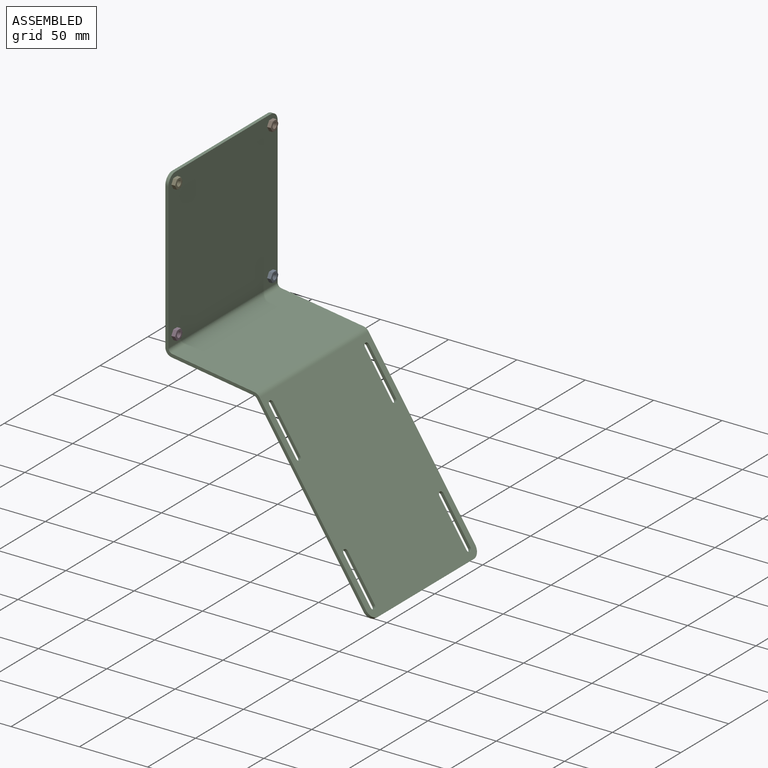
[diagram: assembled view]
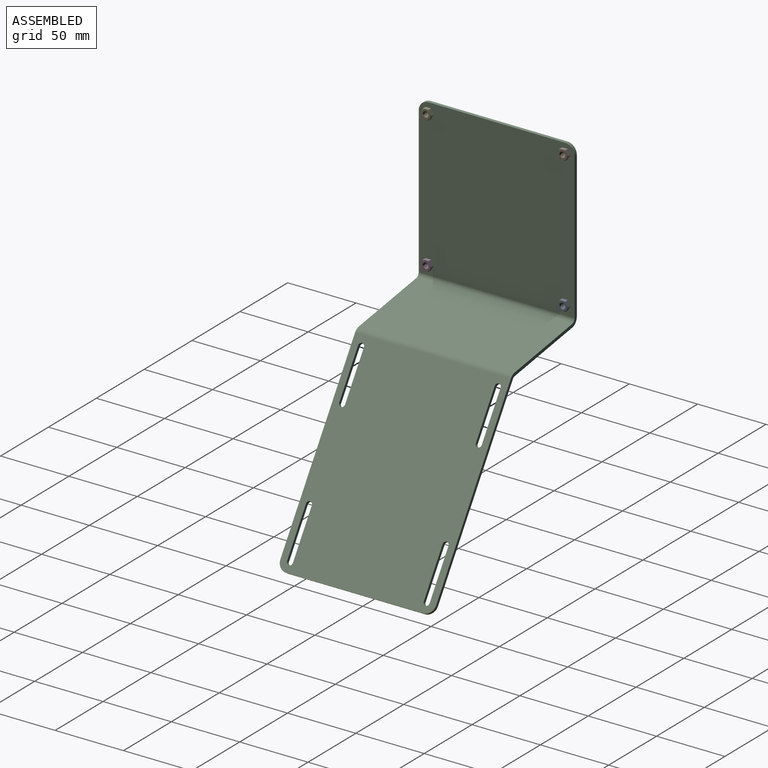
[diagram: assembled view, second angle]
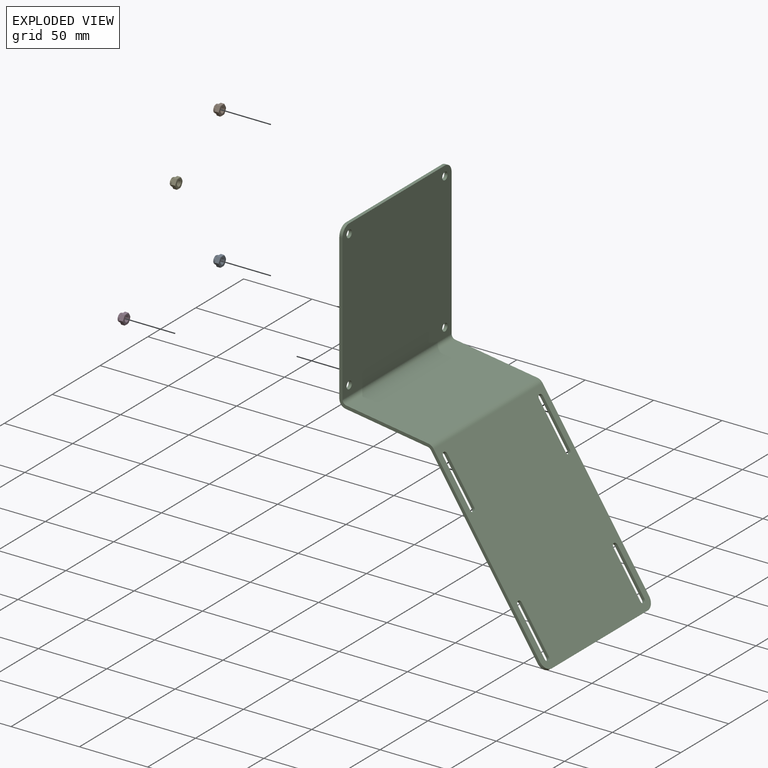
[diagram: exploded view]
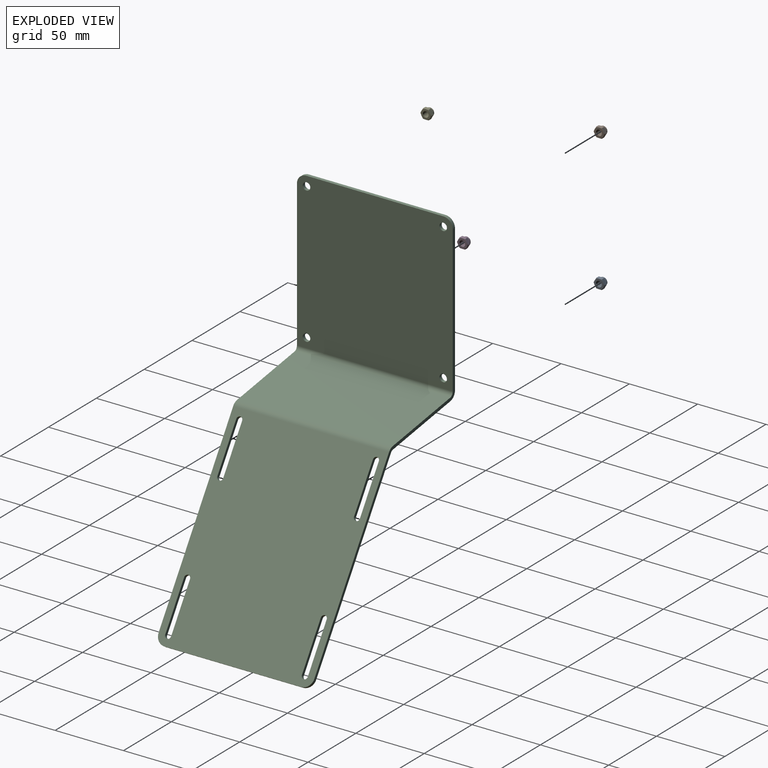
[diagram: exploded view, second angle]
ASSEMBLY  parts=5 mates=4
PART A: 276 faces, bbox 8.4x8.4x5.5 mm
  f0: plane 3.81x3.01mm, normal (0.5,0.87,0), area 10.6mm2, adj f1,f5,f155,f274,f275
  f1: plane 4.35x3.01mm, normal (1,0,0), area 10.6mm2, adj f0,f2,f155,f270,f275
  f2: plane 3.81x3.01mm, normal (0.5,-0.87,0), area 10.6mm2, adj f1,f3,f155,f270,f271
  f3: plane 3.81x3.01mm, normal (-0.5,-0.87,0), area 10.6mm2, adj f2,f4,f155,f271,f272
  f4: plane 4.35x3.01mm, normal (-1,0,0), area 10.6mm2, adj f3,f5,f155,f272,f273
  f5: plane 3.81x3.01mm, normal (-0.5,0.87,0), area 10.6mm2, adj f0,f4,f155,f273,f274
  f6: plane 7x7mm, normal (0,0,1), area 24.6mm2, adj f267,f270,f271,f272,f273,f274,f275
  f7: bspline ~4.93x4.63mm, area 34mm2, adj f8,f10,f267,f268
  f8: cylinder r=1.55mm len=3.59mm, axis (0,0,1), area 4.3mm2, adj f7,f9,f267,f268,f269
  f9: bspline ~4.81x4.62mm, area 34.1mm2, adj f8,f10,f267,f268,f269
  f10: cylinder r=2mm len=4.5mm, axis (0,0,1), area 2.2mm2, adj f7,f9,f267,f268
  f11: cylinder r=2.99mm len=1.5mm, axis (0,0,1), area 0.6mm2, adj f149,f153,f155,f157
  f12: cylinder r=2.99mm len=1.5mm, axis (0,0,1), area 0.6mm2, adj f146,f150,f155,f157
  f13: cylinder r=2.99mm len=1.5mm, axis (0,0,1), area 0.6mm2, adj f143,f147,f155,f157
  f14: cylinder r=2.99mm len=1.5mm, axis (0,0,1), area 0.6mm2, adj f140,f144,f155,f157
  f15: cylinder r=2.99mm len=1.5mm, axis (0,0,1), area 0.6mm2, adj f137,f141,f155,f157
  f16: cylinder r=2.99mm len=1.5mm, axis (0,0,1), area 0.6mm2, adj f134,f138,f155,f157
  f17: cylinder r=2.99mm len=1.5mm, axis (0,0,1), area 0.6mm2, adj f131,f135,f155,f157
  f18: cylinder r=2.99mm len=1.5mm, axis (0,0,1), area 0.6mm2, adj f128,f132,f155,f157
  f19: cylinder r=2.99mm len=1.5mm, axis (0,0,1), area 0.6mm2, adj f125,f129,f155,f157
  f20: cylinder r=2.99mm len=1.5mm, axis (0,0,1), area 0.6mm2, adj f122,f126,f155,f157
  f21: cylinder r=2.99mm len=1.5mm, axis (0,0,1), area 0.6mm2, adj f119,f123,f155,f157
  f22: cylinder r=2.99mm len=1.5mm, axis (0,0,1), area 0.6mm2, adj f116,f120,f155,f157
  f23: cylinder r=2.99mm len=1.5mm, axis (0,0,1), area 0.6mm2, adj f113,f117,f155,f157
  f24: cylinder r=2.99mm len=1.5mm, axis (0,0,1), area 0.6mm2, adj f110,f114,f155,f157
  f25: cylinder r=2.99mm len=1.5mm, axis (0,0,1), area 0.6mm2, adj f107,f111,f155,f157
  f26: cylinder r=2.99mm len=1.5mm, axis (0,0,1), area 0.6mm2, adj f104,f108,f155,f157
  f27: cylinder r=2.99mm len=1.5mm, axis (0,0,1), area 0.6mm2, adj f101,f105,f155,f157
  f28: cylinder r=2.99mm len=1.5mm, axis (0,0,1), area 0.6mm2, adj f98,f102,f155,f157
  f29: cylinder r=2.99mm len=1.5mm, axis (0,0,1), area 0.6mm2, adj f95,f99,f155,f157
  f30: cylinder r=2.99mm len=1.5mm, axis (0,0,1), area 0.6mm2, adj f92,f96,f155,f157
  f31: cylinder r=2.99mm len=1.5mm, axis (0,0,1), area 0.6mm2, adj f89,f93,f155,f157
  f32: cylinder r=2.99mm len=1.5mm, axis (0,0,1), area 0.6mm2, adj f86,f90,f155,f157
  f33: cylinder r=2.99mm len=1.5mm, axis (0,0,1), area 0.6mm2, adj f83,f87,f155,f157
  f34: cylinder r=2.99mm len=1.5mm, axis (0,0,1), area 0.6mm2, adj f80,f84,f155,f157
  f35: cylinder r=2.99mm len=1.5mm, axis (0,0,1), area 0.6mm2, adj f77,f81,f155,f157
  f36: cylinder r=2.99mm len=1.5mm, axis (0,0,1), area 0.6mm2, adj f74,f78,f155,f157
  f37: cylinder r=2.99mm len=1.5mm, axis (0,0,1), area 0.6mm2, adj f71,f75,f155,f157
  f38: cylinder r=2.99mm len=1.5mm, axis (0,0,1), area 0.6mm2, adj f68,f72,f155,f157
  f39: cylinder r=2.99mm len=1.5mm, axis (0,0,1), area 0.6mm2, adj f65,f69,f155,f157
  f40: cylinder r=2.99mm len=1.5mm, axis (0,0,1), area 0.6mm2, adj f62,f66,f155,f157
  f41: cylinder r=2.99mm len=1.5mm, axis (0,0,1), area 0.6mm2, adj f59,f63,f155,f157
  f42: cylinder r=2.99mm len=1.5mm, axis (0,0,1), area 0.6mm2, adj f56,f60,f155,f157
  f43: cylinder r=2.99mm len=1.5mm, axis (0,0,1), area 0.6mm2, adj f53,f57,f155,f157
  f44: cylinder r=2.99mm len=1.5mm, axis (0,0,1), area 0.6mm2, adj f50,f54,f155,f157
  f45: cylinder r=2.99mm len=1.5mm, axis (0,0,1), area 0.6mm2, adj f47,f51,f155,f157
  f46: cylinder r=2.99mm len=1.5mm, axis (0,0,1), area 0.6mm2, adj f48,f152,f155,f157
  f47: plane 1.5x0.15mm, normal (1,0,0), area 0.2mm2, adj f45,f49,f155,f157
  f48: plane 1.5x0.15mm, normal (-1,0,0), area 0.2mm2, adj f46,f49,f155,f157
  f49: plane 1.5x0.13mm, normal (0,1,0), area 0.2mm2, adj f47,f48,f155,f157
  f50: plane 1.5x0.15mm, normal (0.98,0.17,0), area 0.2mm2, adj f44,f52,f155,f157
  f51: plane 1.5x0.15mm, normal (-0.98,-0.17,0), area 0.2mm2, adj f45,f52,f155,f157
  f52: plane 1.5x0.13mm, normal (-0.17,0.98,0), area 0.2mm2, adj f50,f51,f155,f157
  f53: plane 1.5x0.14mm, normal (0.94,0.34,0), area 0.2mm2, adj f43,f55,f155,f157
  f54: plane 1.5x0.14mm, normal (-0.94,-0.34,0), area 0.2mm2, adj f44,f55,f155,f157
  f55: plane 1.5x0.12mm, normal (-0.34,0.94,0), area 0.2mm2, adj f53,f54,f155,f157
  f56: plane 1.5x0.13mm, normal (0.87,0.5,0), area 0.2mm2, adj f42,f58,f155,f157
  f57: plane 1.5x0.13mm, normal (-0.87,-0.5,0), area 0.2mm2, adj f43,f58,f155,f157
  f58: plane 1.5x0.11mm, normal (-0.5,0.87,0), area 0.2mm2, adj f56,f57,f155,f157
  f59: plane 1.5x0.11mm, normal (0.77,0.64,0), area 0.2mm2, adj f41,f61,f155,f157
  f60: plane 1.5x0.11mm, normal (-0.77,-0.64,0), area 0.2mm2, adj f42,f61,f155,f157
  f61: plane 1.5x0.1mm, normal (-0.64,0.77,0), area 0.2mm2, adj f59,f60,f155,f157
  f62: plane 1.5x0.11mm, normal (0.64,0.77,0), area 0.2mm2, adj f40,f64,f155,f157
  f63: plane 1.5x0.11mm, normal (-0.64,-0.77,0), area 0.2mm2, adj f41,f64,f155,f157
  f64: plane 1.5x0.1mm, normal (-0.77,0.64,0), area 0.2mm2, adj f62,f63,f155,f157
  f65: plane 1.5x0.13mm, normal (0.5,0.87,0), area 0.2mm2, adj f39,f67,f155,f157
  f66: plane 1.5x0.13mm, normal (-0.5,-0.87,0), area 0.2mm2, adj f40,f67,f155,f157
  f67: plane 1.5x0.11mm, normal (-0.87,0.5,0), area 0.2mm2, adj f65,f66,f155,f157
  f68: plane 1.5x0.14mm, normal (0.34,0.94,0), area 0.2mm2, adj f38,f70,f155,f157
  f69: plane 1.5x0.14mm, normal (-0.34,-0.94,0), area 0.2mm2, adj f39,f70,f155,f157
  f70: plane 1.5x0.12mm, normal (-0.94,0.34,0), area 0.2mm2, adj f68,f69,f155,f157
  f71: plane 1.5x0.15mm, normal (0.17,0.98,0), area 0.2mm2, adj f37,f73,f155,f157
  f72: plane 1.5x0.15mm, normal (-0.17,-0.98,0), area 0.2mm2, adj f38,f73,f155,f157
  f73: plane 1.5x0.13mm, normal (-0.98,0.17,0), area 0.2mm2, adj f71,f72,f155,f157
  f74: plane 1.5x0.15mm, normal (0,1,0), area 0.2mm2, adj f36,f76,f155,f157
  f75: plane 1.5x0.15mm, normal (0,-1,0), area 0.2mm2, adj f37,f76,f155,f157
  f76: plane 1.5x0.13mm, normal (-1,0,0), area 0.2mm2, adj f74,f75,f155,f157
  f77: plane 1.5x0.15mm, normal (-0.17,0.98,0), area 0.2mm2, adj f35,f79,f155,f157
  f78: plane 1.5x0.15mm, normal (0.17,-0.98,0), area 0.2mm2, adj f36,f79,f155,f157
  f79: plane 1.5x0.13mm, normal (-0.98,-0.17,0), area 0.2mm2, adj f77,f78,f155,f157
  f80: plane 1.5x0.14mm, normal (-0.34,0.94,0), area 0.2mm2, adj f34,f82,f155,f157
  f81: plane 1.5x0.14mm, normal (0.34,-0.94,0), area 0.2mm2, adj f35,f82,f155,f157
  f82: plane 1.5x0.12mm, normal (-0.94,-0.34,0), area 0.2mm2, adj f80,f81,f155,f157
  f83: plane 1.5x0.13mm, normal (-0.5,0.87,0), area 0.2mm2, adj f33,f85,f155,f157
  f84: plane 1.5x0.13mm, normal (0.5,-0.87,0), area 0.2mm2, adj f34,f85,f155,f157
  f85: plane 1.5x0.11mm, normal (-0.87,-0.5,0), area 0.2mm2, adj f83,f84,f155,f157
  f86: plane 1.5x0.11mm, normal (-0.64,0.77,0), area 0.2mm2, adj f32,f88,f155,f157
  f87: plane 1.5x0.11mm, normal (0.64,-0.77,0), area 0.2mm2, adj f33,f88,f155,f157
  f88: plane 1.5x0.1mm, normal (-0.77,-0.64,0), area 0.2mm2, adj f86,f87,f155,f157
  f89: plane 1.5x0.11mm, normal (-0.77,0.64,0), area 0.2mm2, adj f31,f91,f155,f157
  f90: plane 1.5x0.11mm, normal (0.77,-0.64,0), area 0.2mm2, adj f32,f91,f155,f157
  f91: plane 1.5x0.1mm, normal (-0.64,-0.77,0), area 0.2mm2, adj f89,f90,f155,f157
  f92: plane 1.5x0.13mm, normal (-0.87,0.5,0), area 0.2mm2, adj f30,f94,f155,f157
  f93: plane 1.5x0.13mm, normal (0.87,-0.5,0), area 0.2mm2, adj f31,f94,f155,f157
  f94: plane 1.5x0.11mm, normal (-0.5,-0.87,0), area 0.2mm2, adj f92,f93,f155,f157
  f95: plane 1.5x0.14mm, normal (-0.94,0.34,0), area 0.2mm2, adj f29,f97,f155,f157
  f96: plane 1.5x0.14mm, normal (0.94,-0.34,0), area 0.2mm2, adj f30,f97,f155,f157
  f97: plane 1.5x0.12mm, normal (-0.34,-0.94,0), area 0.2mm2, adj f95,f96,f155,f157
  f98: plane 1.5x0.15mm, normal (-0.98,0.17,0), area 0.2mm2, adj f28,f100,f155,f157
  f99: plane 1.5x0.15mm, normal (0.98,-0.17,0), area 0.2mm2, adj f29,f100,f155,f157
  f100: plane 1.5x0.13mm, normal (-0.17,-0.98,0), area 0.2mm2, adj f98,f99,f155,f157
  f101: plane 1.5x0.15mm, normal (-1,0,0), area 0.2mm2, adj f27,f103,f155,f157
  f102: plane 1.5x0.15mm, normal (1,0,0), area 0.2mm2, adj f28,f103,f155,f157
  f103: plane 1.5x0.13mm, normal (0,-1,0), area 0.2mm2, adj f101,f102,f155,f157
  f104: plane 1.5x0.15mm, normal (-0.98,-0.17,0), area 0.2mm2, adj f26,f106,f155,f157
  f105: plane 1.5x0.15mm, normal (0.98,0.17,0), area 0.2mm2, adj f27,f106,f155,f157
  f106: plane 1.5x0.13mm, normal (0.17,-0.98,0), area 0.2mm2, adj f104,f105,f155,f157
  f107: plane 1.5x0.14mm, normal (-0.94,-0.34,0), area 0.2mm2, adj f25,f109,f155,f157
  f108: plane 1.5x0.14mm, normal (0.94,0.34,0), area 0.2mm2, adj f26,f109,f155,f157
  f109: plane 1.5x0.12mm, normal (0.34,-0.94,0), area 0.2mm2, adj f107,f108,f155,f157
  f110: plane 1.5x0.13mm, normal (-0.87,-0.5,0), area 0.2mm2, adj f24,f112,f155,f157
  f111: plane 1.5x0.13mm, normal (0.87,0.5,0), area 0.2mm2, adj f25,f112,f155,f157
  f112: plane 1.5x0.11mm, normal (0.5,-0.87,0), area 0.2mm2, adj f110,f111,f155,f157
  f113: plane 1.5x0.11mm, normal (-0.77,-0.64,0), area 0.2mm2, adj f23,f115,f155,f157
  f114: plane 1.5x0.11mm, normal (0.77,0.64,0), area 0.2mm2, adj f24,f115,f155,f157
  f115: plane 1.5x0.1mm, normal (0.64,-0.77,0), area 0.2mm2, adj f113,f114,f155,f157
  f116: plane 1.5x0.11mm, normal (-0.64,-0.77,0), area 0.2mm2, adj f22,f118,f155,f157
  f117: plane 1.5x0.11mm, normal (0.64,0.77,0), area 0.2mm2, adj f23,f118,f155,f157
  f118: plane 1.5x0.1mm, normal (0.77,-0.64,0), area 0.2mm2, adj f116,f117,f155,f157
  f119: plane 1.5x0.13mm, normal (-0.5,-0.87,0), area 0.2mm2, adj f21,f121,f155,f157
  f120: plane 1.5x0.13mm, normal (0.5,0.87,0), area 0.2mm2, adj f22,f121,f155,f157
  f121: plane 1.5x0.11mm, normal (0.87,-0.5,0), area 0.2mm2, adj f119,f120,f155,f157
  f122: plane 1.5x0.14mm, normal (-0.34,-0.94,0), area 0.2mm2, adj f20,f124,f155,f157
  f123: plane 1.5x0.14mm, normal (0.34,0.94,0), area 0.2mm2, adj f21,f124,f155,f157
  f124: plane 1.5x0.12mm, normal (0.94,-0.34,0), area 0.2mm2, adj f122,f123,f155,f157
  f125: plane 1.5x0.15mm, normal (-0.17,-0.98,0), area 0.2mm2, adj f19,f127,f155,f157
  f126: plane 1.5x0.15mm, normal (0.17,0.98,0), area 0.2mm2, adj f20,f127,f155,f157
  f127: plane 1.5x0.13mm, normal (0.98,-0.17,0), area 0.2mm2, adj f125,f126,f155,f157
  f128: plane 1.5x0.15mm, normal (0,-1,0), area 0.2mm2, adj f18,f130,f155,f157
  f129: plane 1.5x0.15mm, normal (0,1,0), area 0.2mm2, adj f19,f130,f155,f157
  f130: plane 1.5x0.13mm, normal (1,0,0), area 0.2mm2, adj f128,f129,f155,f157
  f131: plane 1.5x0.15mm, normal (0.17,-0.98,0), area 0.2mm2, adj f17,f133,f155,f157
  f132: plane 1.5x0.15mm, normal (-0.17,0.98,0), area 0.2mm2, adj f18,f133,f155,f157
  f133: plane 1.5x0.13mm, normal (0.98,0.17,0), area 0.2mm2, adj f131,f132,f155,f157
  f134: plane 1.5x0.14mm, normal (0.34,-0.94,0), area 0.2mm2, adj f16,f136,f155,f157
  f135: plane 1.5x0.14mm, normal (-0.34,0.94,0), area 0.2mm2, adj f17,f136,f155,f157
  f136: plane 1.5x0.12mm, normal (0.94,0.34,0), area 0.2mm2, adj f134,f135,f155,f157
  f137: plane 1.5x0.13mm, normal (0.5,-0.87,0), area 0.2mm2, adj f15,f139,f155,f157
  f138: plane 1.5x0.13mm, normal (-0.5,0.87,0), area 0.2mm2, adj f16,f139,f155,f157
  f139: plane 1.5x0.11mm, normal (0.87,0.5,0), area 0.2mm2, adj f137,f138,f155,f157
  f140: plane 1.5x0.11mm, normal (0.64,-0.77,0), area 0.2mm2, adj f14,f142,f155,f157
  f141: plane 1.5x0.11mm, normal (-0.64,0.77,0), area 0.2mm2, adj f15,f142,f155,f157
  f142: plane 1.5x0.1mm, normal (0.77,0.64,0), area 0.2mm2, adj f140,f141,f155,f157
  f143: plane 1.5x0.11mm, normal (0.77,-0.64,0), area 0.2mm2, adj f13,f145,f155,f157
  f144: plane 1.5x0.11mm, normal (-0.77,0.64,0), area 0.2mm2, adj f14,f145,f155,f157
  f145: plane 1.5x0.1mm, normal (0.64,0.77,0), area 0.2mm2, adj f143,f144,f155,f157
  f146: plane 1.5x0.13mm, normal (0.87,-0.5,0), area 0.2mm2, adj f12,f148,f155,f157
  f147: plane 1.5x0.13mm, normal (-0.87,0.5,0), area 0.2mm2, adj f13,f148,f155,f157
  f148: plane 1.5x0.11mm, normal (0.5,0.87,0), area 0.2mm2, adj f146,f147,f155,f157
  f149: plane 1.5x0.14mm, normal (0.94,-0.34,0), area 0.2mm2, adj f11,f151,f155,f157
  f150: plane 1.5x0.14mm, normal (-0.94,0.34,0), area 0.2mm2, adj f12,f151,f155,f157
  f151: plane 1.5x0.12mm, normal (0.34,0.94,0), area 0.2mm2, adj f149,f150,f155,f157
  f152: plane 1.5x0.15mm, normal (0.98,-0.17,0), area 0.2mm2, adj f46,f154,f155,f157
  f153: plane 1.5x0.15mm, normal (-0.98,0.17,0), area 0.2mm2, adj f11,f154,f155,f157
  f154: plane 1.5x0.13mm, normal (0.17,0.98,0), area 0.2mm2, adj f152,f153,f155,f157
  f155: plane 8.08x7mm, normal (0,0,-1), area 15mm2, adj f0,f1,f2,f3,f4,f5,f11,f12
  f156: cone r=2.85mm half-angle=20deg, axis (0,0,-1), area 9.1mm2, adj f157,f158,f159,f160,f161,f162,f163,f164
  f157: plane 5.98x5.98mm, normal (0,0,-1), area 5.1mm2, adj f11,f12,f13,f14,f15,f16,f17,f18
  f158: plane 0.13x0.03mm, normal (-0.98,-0.17,0), area 0mm2, adj f156,f159,f160,f266
  f159: plane 0.02x0.01mm, normal (0.17,-0.98,0), area 0mm2, adj f156,f158,f266
  f160: plane 0.02x0.01mm, normal (-0.17,0.98,0), area 0mm2, adj f156,f158,f266
  f161: plane 0.12x0.05mm, normal (-0.94,-0.34,0), area 0mm2, adj f156,f162,f163,f266
  f162: plane 0.02x0.01mm, normal (0.34,-0.94,0), area 0mm2, adj f156,f161,f266
  f163: plane 0.02x0.01mm, normal (-0.34,0.94,0), area 0mm2, adj f156,f161,f266
  f164: plane 0.11x0.07mm, normal (-0.87,-0.5,0), area 0mm2, adj f156,f165,f166,f266
  f165: plane 0.02x0.01mm, normal (0.5,-0.87,0), area 0mm2, adj f156,f164,f266
  f166: plane 0.02x0.01mm, normal (-0.5,0.87,0), area 0mm2, adj f156,f164,f266
  f167: plane 0.1x0.09mm, normal (-0.77,-0.64,0), area 0mm2, adj f156,f168,f169,f266
  f168: plane 0.02x0.01mm, normal (0.64,-0.77,0), area 0mm2, adj f156,f167,f266
  f169: plane 0.02x0.01mm, normal (-0.64,0.77,0), area 0mm2, adj f156,f167,f266
  f170: plane 0.1x0.09mm, normal (-0.64,-0.77,0), area 0mm2, adj f156,f171,f172,f266
  f171: plane 0.02x0.01mm, normal (0.77,-0.64,0), area 0mm2, adj f156,f170,f266
  f172: plane 0.02x0.01mm, normal (-0.77,0.64,0), area 0mm2, adj f156,f170,f266
  f173: plane 0.11x0.07mm, normal (-0.5,-0.87,0), area 0mm2, adj f156,f174,f175,f266
  f174: plane 0.02x0.01mm, normal (0.87,-0.5,0), area 0mm2, adj f156,f173,f266
  f175: plane 0.02x0.01mm, normal (-0.87,0.5,0), area 0mm2, adj f156,f173,f266
  f176: plane 0.12x0.05mm, normal (-0.34,-0.94,0), area 0mm2, adj f156,f177,f178,f266
  f177: plane 0.02x0.01mm, normal (0.94,-0.34,0), area 0mm2, adj f156,f176,f266
  f178: plane 0.02x0.01mm, normal (-0.94,0.34,0), area 0mm2, adj f156,f176,f266
  f179: plane 0.13x0.03mm, normal (-0.17,-0.98,0), area 0mm2, adj f156,f180,f181,f266
  f180: plane 0.02x0.01mm, normal (0.98,-0.17,0), area 0mm2, adj f156,f179,f266
  f181: plane 0.02x0.01mm, normal (-0.98,0.17,0), area 0mm2, adj f156,f179,f266
  f182: plane 0.13x0.02mm, normal (0,-1,0), area 0mm2, adj f156,f183,f184,f266
  f183: plane 0.02x0.01mm, normal (1,0,0), area 0mm2, adj f156,f182,f266
  f184: plane 0.02x0.01mm, normal (-1,0,0), area 0mm2, adj f156,f182,f266
  f185: plane 0.13x0.03mm, normal (0.17,-0.98,0), area 0mm2, adj f156,f186,f187,f266
  f186: plane 0.02x0.01mm, normal (0.98,0.17,0), area 0mm2, adj f156,f185,f266
  f187: plane 0.02x0.01mm, normal (-0.98,-0.17,0), area 0mm2, adj f156,f185,f266
  f188: plane 0.12x0.05mm, normal (0.34,-0.94,0), area 0mm2, adj f156,f189,f190,f266
  f189: plane 0.02x0.01mm, normal (0.94,0.34,0), area 0mm2, adj f156,f188,f266
  f190: plane 0.02x0.01mm, normal (-0.94,-0.34,0), area 0mm2, adj f156,f188,f266
  f191: plane 0.11x0.07mm, normal (0.5,-0.87,0), area 0mm2, adj f156,f192,f193,f266
  f192: plane 0.02x0.01mm, normal (0.87,0.5,0), area 0mm2, adj f156,f191,f266
  f193: plane 0.02x0.01mm, normal (-0.87,-0.5,0), area 0mm2, adj f156,f191,f266
  f194: plane 0.1x0.09mm, normal (0.64,-0.77,0), area 0mm2, adj f156,f195,f196,f266
  f195: plane 0.02x0.01mm, normal (0.77,0.64,0), area 0mm2, adj f156,f194,f266
  f196: plane 0.02x0.01mm, normal (-0.77,-0.64,0), area 0mm2, adj f156,f194,f266
  f197: plane 0.1x0.09mm, normal (0.77,-0.64,0), area 0mm2, adj f156,f198,f199,f266
  f198: plane 0.02x0.01mm, normal (0.64,0.77,0), area 0mm2, adj f156,f197,f266
  f199: plane 0.02x0.01mm, normal (-0.64,-0.77,0), area 0mm2, adj f156,f197,f266
  f200: plane 0.11x0.07mm, normal (0.87,-0.5,0), area 0mm2, adj f156,f201,f202,f266
  f201: plane 0.02x0.01mm, normal (0.5,0.87,0), area 0mm2, adj f156,f200,f266
  f202: plane 0.02x0.01mm, normal (-0.5,-0.87,0), area 0mm2, adj f156,f200,f266
  f203: plane 0.12x0.05mm, normal (0.94,-0.34,0), area 0mm2, adj f156,f204,f205,f266
  f204: plane 0.02x0.01mm, normal (0.34,0.94,0), area 0mm2, adj f156,f203,f266
  f205: plane 0.02x0.01mm, normal (-0.34,-0.94,0), area 0mm2, adj f156,f203,f266
  f206: plane 0.13x0.03mm, normal (0.98,-0.17,0), area 0mm2, adj f156,f207,f208,f266
  f207: plane 0.02x0.01mm, normal (0.17,0.98,0), area 0mm2, adj f156,f206,f266
  f208: plane 0.02x0.01mm, normal (-0.17,-0.98,0), area 0mm2, adj f156,f206,f266
  f209: plane 0.13x0.02mm, normal (1,0,0), area 0mm2, adj f156,f210,f211,f266
  f210: plane 0.02x0.01mm, normal (0,1,0), area 0mm2, adj f156,f209,f266
  f211: plane 0.02x0.01mm, normal (0,-1,0), area 0mm2, adj f156,f209,f266
  f212: plane 0.13x0.03mm, normal (0.98,0.17,0), area 0mm2, adj f156,f213,f214,f266
  f213: plane 0.02x0.01mm, normal (-0.17,0.98,0), area 0mm2, adj f156,f212,f266
  f214: plane 0.02x0.01mm, normal (0.17,-0.98,0), area 0mm2, adj f156,f212,f266
  f215: plane 0.12x0.05mm, normal (0.94,0.34,0), area 0mm2, adj f156,f216,f217,f266
  f216: plane 0.02x0.01mm, normal (-0.34,0.94,0), area 0mm2, adj f156,f215,f266
  f217: plane 0.02x0.01mm, normal (0.34,-0.94,0), area 0mm2, adj f156,f215,f266
  f218: plane 0.11x0.07mm, normal (0.87,0.5,0), area 0mm2, adj f156,f219,f220,f266
  f219: plane 0.02x0.01mm, normal (-0.5,0.87,0), area 0mm2, adj f156,f218,f266
  f220: plane 0.02x0.01mm, normal (0.5,-0.87,0), area 0mm2, adj f156,f218,f266
  f221: plane 0.1x0.09mm, normal (0.77,0.64,0), area 0mm2, adj f156,f222,f223,f266
  f222: plane 0.02x0.01mm, normal (-0.64,0.77,0), area 0mm2, adj f156,f221,f266
  f223: plane 0.02x0.01mm, normal (0.64,-0.77,0), area 0mm2, adj f156,f221,f266
  f224: plane 0.1x0.09mm, normal (0.64,0.77,0), area 0mm2, adj f156,f225,f226,f266
  f225: plane 0.02x0.01mm, normal (-0.77,0.64,0), area 0mm2, adj f156,f224,f266
  f226: plane 0.02x0.01mm, normal (0.77,-0.64,0), area 0mm2, adj f156,f224,f266
  f227: plane 0.11x0.07mm, normal (0.5,0.87,0), area 0mm2, adj f156,f228,f229,f266
  f228: plane 0.02x0.01mm, normal (-0.87,0.5,0), area 0mm2, adj f156,f227,f266
  f229: plane 0.02x0.01mm, normal (0.87,-0.5,0), area 0mm2, adj f156,f227,f266
  f230: plane 0.12x0.05mm, normal (0.34,0.94,0), area 0mm2, adj f156,f231,f232,f266
  f231: plane 0.02x0.01mm, normal (-0.94,0.34,0), area 0mm2, adj f156,f230,f266
  f232: plane 0.02x0.01mm, normal (0.94,-0.34,0), area 0mm2, adj f156,f230,f266
  f233: plane 0.13x0.03mm, normal (0.17,0.98,0), area 0mm2, adj f156,f234,f235,f266
  f234: plane 0.02x0.01mm, normal (-0.98,0.17,0), area 0mm2, adj f156,f233,f266
  f235: plane 0.02x0.01mm, normal (0.98,-0.17,0), area 0mm2, adj f156,f233,f266
  f236: plane 0.13x0.02mm, normal (0,1,0), area 0mm2, adj f156,f237,f238,f266
  f237: plane 0.02x0.01mm, normal (-1,0,0), area 0mm2, adj f156,f236,f266
  f238: plane 0.02x0.01mm, normal (1,0,0), area 0mm2, adj f156,f236,f266
  f239: plane 0.13x0.03mm, normal (-0.17,0.98,0), area 0mm2, adj f156,f240,f241,f266
  f240: plane 0.02x0.01mm, normal (-0.98,-0.17,0), area 0mm2, adj f156,f239,f266
  f241: plane 0.02x0.01mm, normal (0.98,0.17,0), area 0mm2, adj f156,f239,f266
  f242: plane 0.12x0.05mm, normal (-0.34,0.94,0), area 0mm2, adj f156,f243,f244,f266
  f243: plane 0.02x0.01mm, normal (-0.94,-0.34,0), area 0mm2, adj f156,f242,f266
  f244: plane 0.02x0.01mm, normal (0.94,0.34,0), area 0mm2, adj f156,f242,f266
  f245: plane 0.11x0.07mm, normal (-0.5,0.87,0), area 0mm2, adj f156,f246,f247,f266
  f246: plane 0.02x0.01mm, normal (-0.87,-0.5,0), area 0mm2, adj f156,f245,f266
  f247: plane 0.02x0.01mm, normal (0.87,0.5,0), area 0mm2, adj f156,f245,f266
  f248: plane 0.1x0.09mm, normal (-0.64,0.77,0), area 0mm2, adj f156,f249,f250,f266
  f249: plane 0.02x0.01mm, normal (-0.77,-0.64,0), area 0mm2, adj f156,f248,f266
  f250: plane 0.02x0.01mm, normal (0.77,0.64,0), area 0mm2, adj f156,f248,f266
  f251: plane 0.1x0.09mm, normal (-0.77,0.64,0), area 0mm2, adj f156,f252,f253,f266
  f252: plane 0.02x0.01mm, normal (-0.64,-0.77,0), area 0mm2, adj f156,f251,f266
  f253: plane 0.02x0.01mm, normal (0.64,0.77,0), area 0mm2, adj f156,f251,f266
  f254: plane 0.11x0.07mm, normal (-0.87,0.5,0), area 0mm2, adj f156,f255,f256,f266
  f255: plane 0.02x0.01mm, normal (-0.5,-0.87,0), area 0mm2, adj f156,f254,f266
  f256: plane 0.02x0.01mm, normal (0.5,0.87,0), area 0mm2, adj f156,f254,f266
  f257: plane 0.12x0.05mm, normal (-0.94,0.34,0), area 0mm2, adj f156,f258,f259,f266
  f258: plane 0.02x0.01mm, normal (-0.34,-0.94,0), area 0mm2, adj f156,f257,f266
  f259: plane 0.02x0.01mm, normal (0.34,0.94,0), area 0mm2, adj f156,f257,f266
  f260: plane 0.13x0.03mm, normal (-0.98,0.17,0), area 0mm2, adj f156,f261,f262,f266
  f261: plane 0.02x0.01mm, normal (-0.17,-0.98,0), area 0mm2, adj f156,f260,f266
  f262: plane 0.02x0.01mm, normal (0.17,0.98,0), area 0mm2, adj f156,f260,f266
  f263: plane 0.13x0.02mm, normal (-1,0,0), area 0mm2, adj f156,f264,f265,f266
  f264: plane 0.02x0.01mm, normal (0,-1,0), area 0mm2, adj f156,f263,f266
  f265: plane 0.02x0.01mm, normal (0,1,0), area 0mm2, adj f156,f263,f266
  f266: plane 5.7x5.7mm, normal (0,0,-1), area 11.6mm2, adj f156,f158,f159,f160,f161,f162,f163,f164
  f267: cone r=2.1mm half-angle=45deg, axis (0,0,1), area 5.5mm2, adj f6,f7,f8,f9,f10
  f268: cone r=2.1mm half-angle=45deg, axis (0,0,-1), area 5.5mm2, adj f7,f8,f9,f10,f266,f269
  f269: cone r=2.1mm half-angle=45deg, axis (0,0,-1), area 0mm2, adj f8,f9,f268
  f270: cone r=3.5mm half-angle=70deg, axis (0,0,-1), area 1.1mm2, adj f1,f2,f6
  f271: cone r=3.5mm half-angle=70deg, axis (0,0,-1), area 1.1mm2, adj f2,f3,f6
  f272: cone r=3.5mm half-angle=70deg, axis (0,0,-1), area 1.1mm2, adj f3,f4,f6
  f273: cone r=3.5mm half-angle=70deg, axis (0,0,-1), area 1.1mm2, adj f4,f5,f6
  f274: cone r=3.5mm half-angle=70deg, axis (0,0,-1), area 1.1mm2, adj f0,f5,f6
  f275: cone r=3.5mm half-angle=70deg, axis (0,0,-1), area 1.1mm2, adj f0,f1,f6
PART B: same geometry as A
PART C: 46 faces, bbox 150.7x114x255.9 mm
  f0: plane 125.97x114mm, normal (-0.84,0,-0.54), area 16421.1mm2, adj f9,f10,f11,f12,f13,f21,f30,f31
  f1: plane 125.97x114mm, normal (0.84,0,0.54), area 16421.1mm2, adj f9,f10,f11,f12,f13,f20,f30,f31
  f2: plane 107x2.36mm, normal (0,1,0), area 252.8mm2, adj f5,f6,f8,f23
  f3: plane 107x2.36mm, normal (0,-1,0), area 252.8mm2, adj f5,f6,f7,f22
  f4: plane 100x2.36mm, normal (0,0,1), area 236.2mm2, adj f5,f6,f7,f8
  f5: plane 114x114mm, normal (-1,0,0), area 12879.9mm2, adj f2,f3,f4,f7,f8,f24,f26,f27
  f6: plane 114x114mm, normal (1,0,0), area 12879.9mm2, adj f2,f3,f4,f7,f8,f25,f26,f27
  f7: cylinder r=7mm len=7mm, axis (-1,0,0), area 26mm2, adj f3,f4,f5,f6
  f8: cylinder r=7mm len=7mm, axis (-1,0,0), area 26mm2, adj f2,f4,f5,f6
  f9: plane 121.39x79.97mm, normal (0,1,0), area 338.3mm2, adj f0,f1,f12,f19
  f10: plane 100x1.98mm, normal (0.54,0,-0.84), area 236.2mm2, adj f0,f1,f12,f13
  f11: plane 121.39x79.97mm, normal (0,-1,0), area 338.3mm2, adj f0,f1,f13,f18
  f12: cylinder r=7mm len=7.16mm, axis (-0.84,0,-0.54), area 26mm2, adj f0,f1,f9,f10
  f13: cylinder r=7mm len=7.16mm, axis (-0.84,0,-0.54), area 26mm2, adj f0,f1,f10,f11
  f14: plane 60.4x11.43mm, normal (0,1,0), area 143.5mm2, adj f16,f17,f19,f23
  f15: plane 60.4x11.43mm, normal (0,-1,0), area 143.5mm2, adj f16,f17,f18,f22
  f16: plane 114x60.05mm, normal (-0.15,0,-0.99), area 6923.5mm2, adj f14,f15,f21,f24
  f17: plane 114x60.05mm, normal (0.15,0,0.99), area 6923.5mm2, adj f14,f15,f20,f25
  f18: plane 4.17x3.75mm, normal (0,-1,0), area 8.7mm2, adj f11,f15,f20,f21
  f19: plane 4.17x3.75mm, normal (0,1,0), area 8.7mm2, adj f9,f14,f20,f21
  f20: cylinder r=5.54mm len=114mm, axis (0,-1,0), area 533.1mm2, adj f1,f17,f18,f19
  f21: cylinder r=3.17mm len=114mm, axis (0,-1,0), area 305.7mm2, adj f0,f16,f18,f19
  f22: plane 5.47x5.06mm, normal (0,-1,0), area 14.6mm2, adj f3,f15,f24,f25
  f23: plane 5.47x5.06mm, normal (0,1,0), area 14.6mm2, adj f2,f14,f24,f25
  f24: cylinder r=5.54mm len=114mm, axis (0,-1,0), area 896.7mm2, adj f5,f16,f22,f23
  f25: cylinder r=3.17mm len=114mm, axis (0,-1,0), area 514.1mm2, adj f6,f17,f22,f23
  f26: cylinder r=2.75mm len=5.5mm, axis (-1,0,0), area 40.8mm2, adj f5,f6
  f27: cylinder r=2.75mm len=5.5mm, axis (-1,0,0), area 40.8mm2, adj f5,f6
  f28: cylinder r=2.75mm len=5.5mm, axis (-1,0,0), area 40.8mm2, adj f5,f6
  f29: cylinder r=2.75mm len=5.5mm, axis (-1,0,0), area 40.8mm2, adj f5,f6
  f30: cylinder r=2.15mm len=4.3mm, axis (0.84,0,0.54), area 16mm2, adj f0,f1,f31,f33
  f31: plane 31.65x21.7mm, normal (0,1,0), area 85.5mm2, adj f0,f1,f30,f32
  f32: cylinder r=2.15mm len=4.3mm, axis (0.84,0,0.54), area 16mm2, adj f0,f1,f31,f33
  f33: plane 31.65x21.7mm, normal (0,-1,0), area 85.5mm2, adj f0,f1,f30,f32
  f34: cylinder r=2.15mm len=4.3mm, axis (0.84,0,0.54), area 16mm2, adj f0,f1,f35,f37
  f35: plane 31.65x21.7mm, normal (0,-1,0), area 85.5mm2, adj f0,f1,f34,f36
  f36: cylinder r=2.15mm len=4.3mm, axis (0.84,0,0.54), area 16mm2, adj f0,f1,f35,f37
  f37: plane 31.65x21.7mm, normal (0,1,0), area 85.5mm2, adj f0,f1,f34,f36
  f38: cylinder r=2.15mm len=4.3mm, axis (0.84,0,0.54), area 16mm2, adj f0,f1,f39,f41
  f39: plane 31.65x21.7mm, normal (0,-1,0), area 85.5mm2, adj f0,f1,f38,f40
  f40: cylinder r=2.15mm len=4.3mm, axis (0.84,0,0.54), area 16mm2, adj f0,f1,f39,f41
  f41: plane 31.65x21.7mm, normal (0,1,0), area 85.5mm2, adj f0,f1,f38,f40
  f42: cylinder r=2.15mm len=4.3mm, axis (0.84,0,0.54), area 16mm2, adj f0,f1,f43,f45
  f43: plane 31.65x21.7mm, normal (0,-1,0), area 85.5mm2, adj f0,f1,f42,f44
  f44: cylinder r=2.15mm len=4.3mm, axis (0.84,0,0.54), area 16mm2, adj f0,f1,f43,f45
  f45: plane 31.65x21.7mm, normal (0,1,0), area 85.5mm2, adj f0,f1,f42,f44
PART D: same geometry as A
PART E: same geometry as A
PLACE A rot(axis=(0,1,0),90deg) t=(2.7,-7,9.73)mm
PLACE B rot(axis=(0,1,0),90deg) t=(2.7,-7,109.73)mm
PLACE C at identity fixed
PLACE D rot(axis=(0,1,0),90deg) t=(2.7,-107,9.73)mm
PLACE E rot(axis=(0,1,0),90deg) t=(2.7,-107,109.73)mm
MATE fastened A.f8 <-> C.f28  axis (-1,0,0) through (0,-7,9.73)mm
MATE fastened D.f8 <-> C.f27  axis (-1,0,0) through (0,-107,9.73)mm
MATE fastened B.f8 <-> C.f8  axis (-1,0,0) through (0,-7,109.73)mm
MATE fastened E.f8 <-> C.f7  axis (-1,0,0) through (0,-107,109.73)mm
